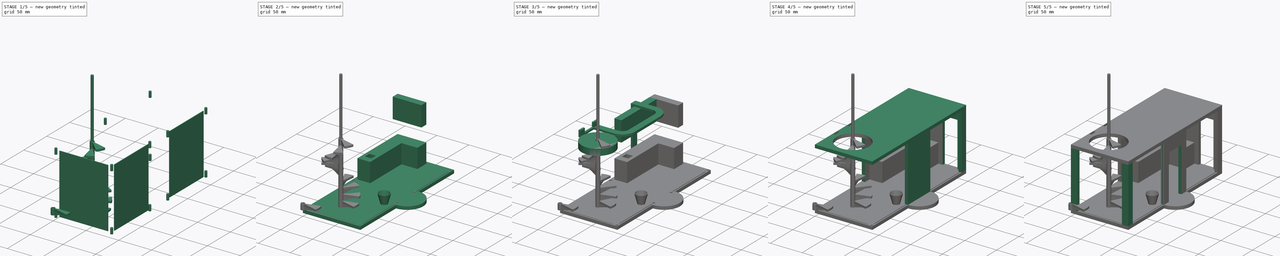
[diagram: build sequence overview — one tinted view per stage of 5, left to right]
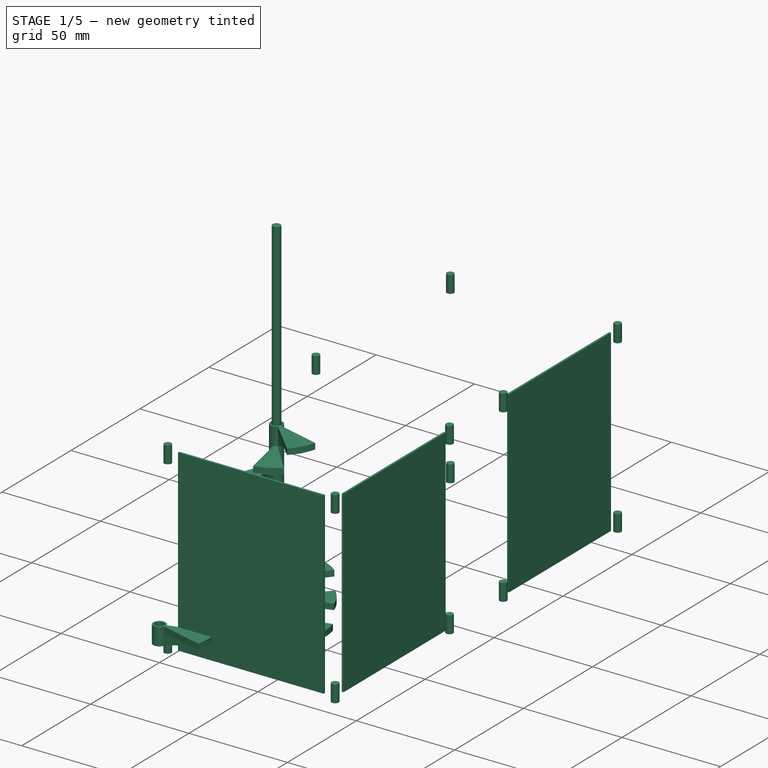
[diagram: stage 1 of 5 — iso view after this stage's code; geometry added in this stage tinted green]
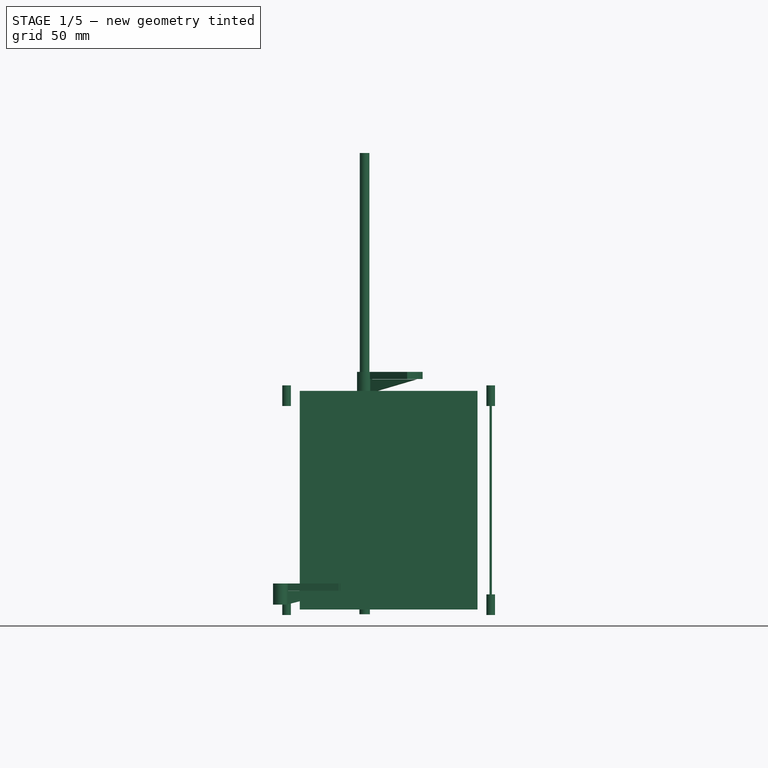
[diagram: stage 1 of 5 — front view after this stage's code; geometry added in this stage tinted green]
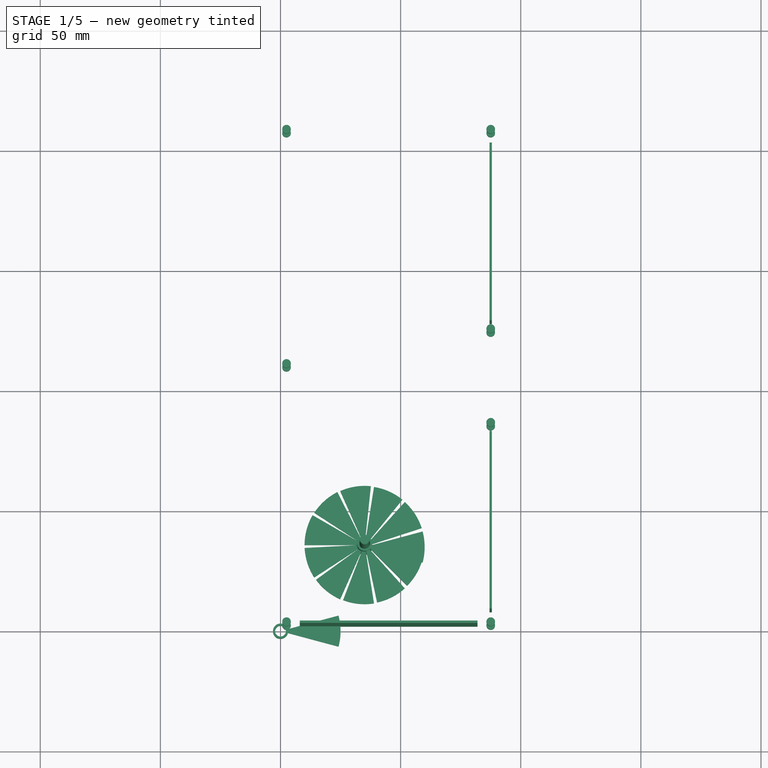
[diagram: stage 1 of 5 — top view after this stage's code; geometry added in this stage tinted green]
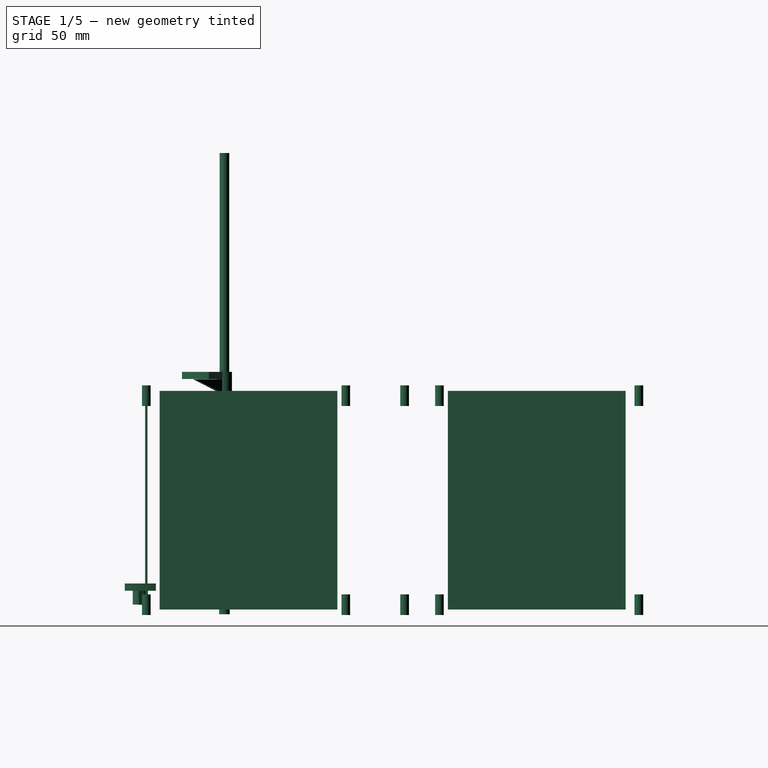
[diagram: stage 1 of 5 — right view after this stage's code; geometry added in this stage tinted green]
FCSTD DOCUMENT  (FreeCAD 0.15R4671 (Git))
Label: Entrada_Casa
License: CreativeCommons Attribution-ShareAlike
LicenseURL: http://creativecommons.org/licenses/by-sa/4.0/
objects: Part::Box×28, Part::Feature×16, Part::Cut×14, Part::MultiFuse×10, Part::Cylinder×8, App::DocumentObjectGroup×2, Part::Offset×1, Part::Fillet×1, Part::Cone×1, Part::Thickness×1, Sketcher::SketchObject×1, PartDesign::Pad×1, Part::FeaturePython×1
note: 84 computed .brp shape members not serialized (recipe doc carries the construction recipe); baked Part::Feature solids carry a one-line shape summary decoded from their .brp

FEATURE [Part::Feature] Offset001  label="Vaciado conector 1"
  Placement = pos=(2.5,2.5,-4) rot=(0,0,1;0rad)
  shape: bbox 3.602 x 3.602 x 8.602 mm, 3 faces (baked)
FEATURE [Part::Feature] Offset002  label="Vaciado conector 2"
  Placement = pos=(87.5,2.5,-4) rot=(0,0,1;0rad)
  shape: bbox 3.602 x 3.602 x 8.602 mm, 3 faces (baked)
FEATURE [Part::Feature] Offset001001  label="Vaciado conector 3"
  Placement = pos=(2.5,2.5,83) rot=(0,0,1;0rad)
  shape: bbox 3.602 x 3.602 x 8.602 mm, 3 faces (baked)
FEATURE [Part::Feature] Offset002001  label="Vaciado conector 4"
  Placement = pos=(87.5,2.5,83) rot=(0,0,1;0rad)
  shape: bbox 3.602 x 3.602 x 8.602 mm, 3 faces (baked)
FEATURE [Part::Feature] Offset002002  label="Vaciado conector 5"
  Placement = pos=(87.5,85.5,-4) rot=(0,0,1;0rad)
  shape: bbox 3.602 x 3.602 x 8.602 mm, 3 faces (baked)
FEATURE [Part::Feature] Offset002002001  label="Vaciado conector 6"
  Placement = pos=(87.5,85.5,83) rot=(0,0,1;0rad)
  shape: bbox 3.602 x 3.602 x 8.602 mm, 3 faces (baked)
FEATURE [Part::Feature] Offset002002002  label="Vaciado conector 7"
  Placement = pos=(87.5,124.5,-4) rot=(0,0,1;0rad)
  shape: bbox 3.602 x 3.602 x 8.602 mm, 3 faces (baked)
FEATURE [Part::Feature] Offset002002002001  label="Vaciado conector 8"
  Placement = pos=(87.5,124.5,83) rot=(0,0,1;0rad)
  shape: bbox 3.602 x 3.602 x 8.602 mm, 3 faces (baked)
FEATURE [Part::Feature] Offset002002002002  label="Vaciado conector 9"
  Placement = pos=(87.5,207.5,-4) rot=(0,0,1;0rad)
  shape: bbox 3.602 x 3.602 x 8.602 mm, 3 faces (baked)
FEATURE [Part::Feature] Offset002002002002001  label="Vaciado conector 10"
  Placement = pos=(87.5,207.5,83) rot=(0,0,1;0rad)
  shape: bbox 3.602 x 3.602 x 8.602 mm, 3 faces (baked)
FEATURE [Part::Feature] Offset001002  label="Vaciado conector 11"
  Placement = pos=(2.5,207.5,83) rot=(0,0,1;0rad)
  shape: bbox 3.602 x 3.602 x 8.602 mm, 3 faces (baked)
FEATURE [Part::Feature] Offset001002001  label="Vaciado conector 12"
  Placement = pos=(2.5,207.5,-4) rot=(0,0,1;0rad)
  shape: bbox 3.602 x 3.602 x 8.602 mm, 3 faces (baked)
FEATURE [Part::Feature] Offset001002002  label="Vaciado conector 13"
  Placement = pos=(2.5,110,-4) rot=(0,0,1;0rad)
  shape: bbox 3.602 x 3.602 x 8.602 mm, 3 faces (baked)
FEATURE [Part::Feature] Offset001002002001  label="Vaciado conector 14"
  Placement = pos=(2.5,110,83) rot=(0,0,1;0rad)
  shape: bbox 3.602 x 3.602 x 8.602 mm, 3 faces (baked)
FEATURE [Part::Box] Box020  label="cristal Lateral Modulo Entrada"
  Height = 91
  Length = 74
  Placement = pos=(8,2,-2) rot=(0,0,1;0rad)
  Width = 1
FEATURE [Part::Box] Box021002  label="cristal Cocina"
  Height = 91
  Length = 1
  Placement = pos=(87,128,-2) rot=(0,0,1;0rad)
  Width = 74
FEATURE [Part::Box] Box021003006  label="Cristal Frontal Izquierdo Modulo Entrada"
  Height = 91
  Length = 1
  Placement = pos=(87,8,-2) rot=(0,0,1;0rad)
  Width = 74
FEATURE [Part::MultiFuse] Fusion004  label="Union de Conectores y Cristales"
  Shapes = -> [Offset001,Offset002,Offset001001,Offset002001,Offset002002,Offset002002001,Offset002002002,Offset002002002001,Offset002002002002,Offset002002002002001,Offset001002,Offset001002001,Offset001002002,Offset001002002001,Box020,Box021002,Box021003006]
FEATURE [Part::Cylinder] Cylinder003003  label="Encastre Barra Central escalera caracol"
  Angle = 360
  Height = 10
  Placement = pos=(35,35,-4) rot=(0,0,1;0rad)
  Radius = 2.2
FEATURE [App::DocumentObjectGroup] Grupo001  label="Elementos constructivos Modulo Entrada"
  Group = -> [Offset,Cut003,Cut004,Cut005,Cut009,Cut010,Cut012]
FEATURE [Part::Cylinder] Cylinder003004  label="Peldaño macizo"
  Angle = 30
  Height = 3
  Placement = pos=(0,0,5.8181) rot=(0,0,-1;0.261799rad)
  Radius = 25
FEATURE [Part::Cylinder] Cylinder003005  label="Exterior  cilindro central"
  Angle = 360
  Height = 8.8181
  Radius = 3.15
FEATURE [Sketcher::SketchObject] Sketch  label="perfil soporte angular"
  Placement = pos=(2.12,0.675,0) rot=(1,0,0;1.5708rad)
  sketch-geometry (3):
    g0: LineSegment StartX=0 StartY=-0.0840877 StartZ=0 EndX=22.85 EndY=5.73401 EndZ=0
    g1: LineSegment StartX=22.85 StartY=5.73401 StartZ=0 EndX=0 EndY=5.73401 EndZ=0
    g2: LineSegment StartX=0 StartY=5.73401 StartZ=0 EndX=0 EndY=-0.0840877 EndZ=0
  constraints (7):
    c: Coincident(g0,g1)
    c: Coincident(g1,g2)
    c: Coincident(g2,g0)
    c: Vertical(g2)
    c: Horizontal(g1)
    c: Distance(g2) = 5.8181
    c: DistanceX(g1) = -22.85
FEATURE [PartDesign::Pad] Pad  label="Refuerzo angular peldaño"
  Length = 1.35
  Length2 = 100
  Placement = pos=(2.12,0.675,0) rot=(1,0,0;1.5708rad)
  Sketch = -> Sketch
  Type = 0
FEATURE [Part::MultiFuse] Fusion009  label="Peldaño master sin paso eje central"
  Shapes = -> [Cylinder003004,Cylinder003005,Pad]
FEATURE [Part::Cylinder] Cylinder003006  label="Hueco central paso barra escalera"
  Angle = 360
  Height = 11
  Placement = pos=(0,0,-1) rot=(0,0,1;0rad)
  Radius = 2.25
FEATURE [Part::Cut] Cut013  label="Master Peldaño Escalera de Caracol"
  Base = -> Fusion009
  Tool = -> Cylinder003006
FEATURE [Part::Cylinder] Cylinder003007  label="Barra Central Escalera Caracol"
  Angle = 360
  Height = 192
  Placement = pos=(35,35,-4) rot=(0,0,1;0rad)
  Radius = 2
FEATURE [Part::Feature] Cut013001  label="Peldaño Escalera de Caracol"
  shape: bbox 28.15 x 12.94 x 8.895 mm, 15 faces (baked)
FEATURE [Part::FeaturePython] Array  label="Peldaños Escalera"  # Draft array (typed FeaturePython)
  Angle = 330
  ArrayType = 1
  Axis = (0,0,1)
  Base = -> Cut013001
  Center = (0,0,0)
  Fuse = false
  IntervalAxis = (0,0,8.81)
  IntervalX = (1,0,0)
  IntervalY = (0,1,0)
  IntervalZ = (0,0,0)
  NumberPolar = 11
  NumberX = 2
  NumberY = 2
  NumberZ = 1
  Placement = pos=(35,35,0) rot=(0,0,1;0rad)
FEATURE [App::DocumentObjectGroup] Grupo  label="Mobiliario Modulo Entrada"
  Group = -> [Fusion008,Cut011,Thickness,Cylinder003007,Array,Cut013]
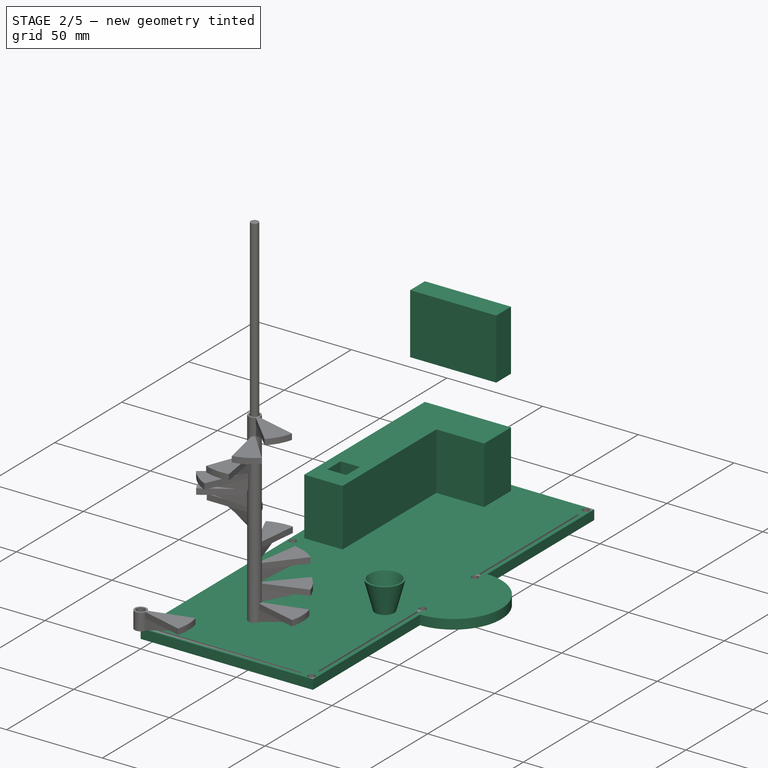
[diagram: stage 2 of 5 — iso view after this stage's code; geometry added in this stage tinted green]
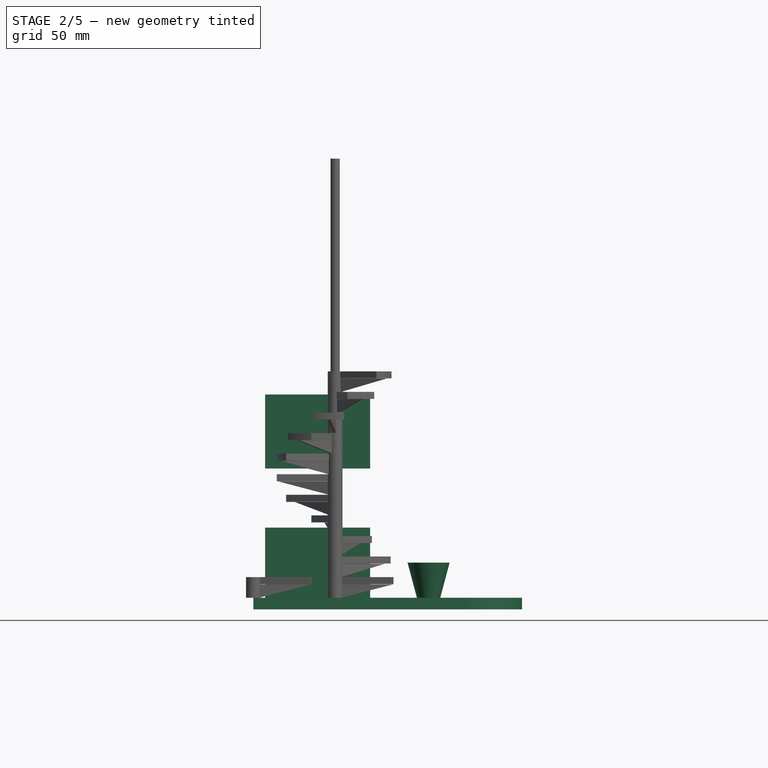
[diagram: stage 2 of 5 — front view after this stage's code; geometry added in this stage tinted green]
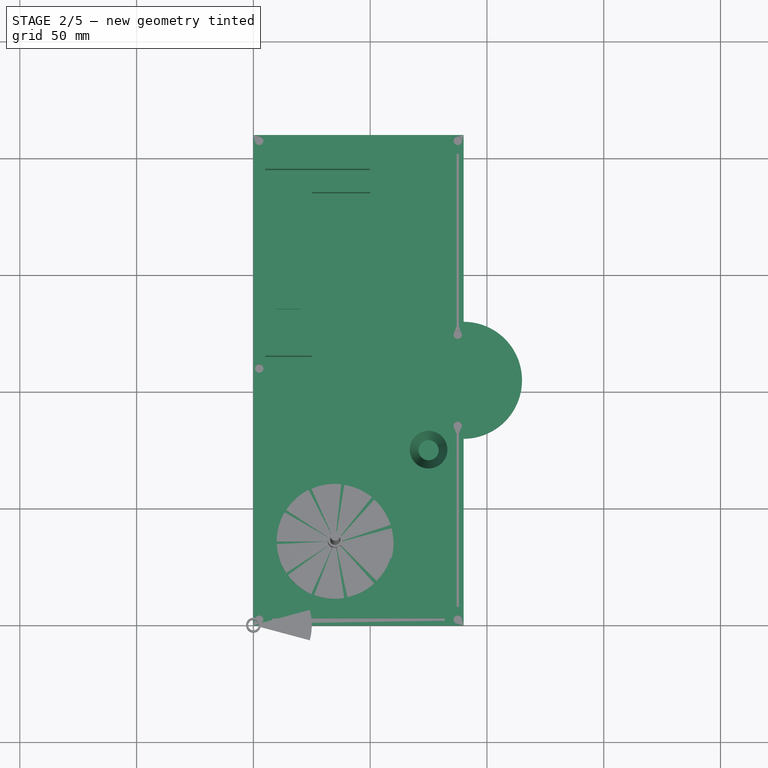
[diagram: stage 2 of 5 — top view after this stage's code; geometry added in this stage tinted green]
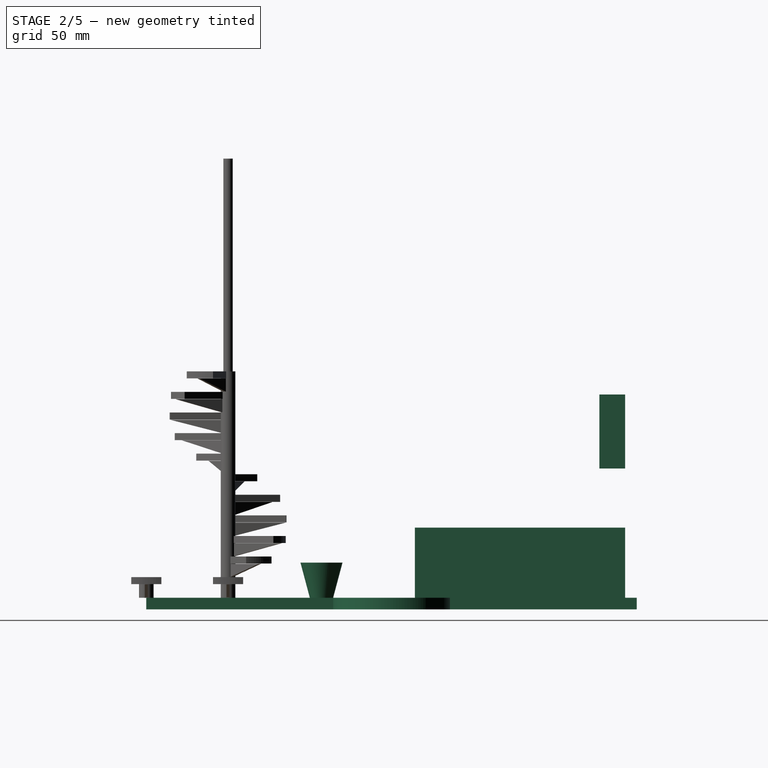
[diagram: stage 2 of 5 — right view after this stage's code; geometry added in this stage tinted green]
FEATURE [Part::Box] Box  label="suelo macizo conteiner 20""
  Height = 5
  Length = 90
  Placement = pos=(0,0,-5) rot=(0,0,1;0rad)
  Width = 210
FEATURE [Part::Cylinder] Cylinder003002  label="Pie Puerta de Entrada Casa"
  Angle = 180
  Height = 5
  Placement = pos=(90,105,-5) rot=(0,0,-1;1.5708rad)
  Radius = 25
FEATURE [Part::MultiFuse] Fusion003  label="Suelo Modulo Entrada con Pie de Puerta"
  Shapes = -> [Box,Cylinder003002]
FEATURE [Part::Cut] Cut007  label="Suelo Modulo de Entrada sin soporte escalera"
  Base = -> Fusion003
  Tool = -> Fusion004
FEATURE [Part::Box] Box021003010005  label="Mueble bajo largo Cocina"
  Height = 30
  Length = 20
  Placement = pos=(5,115,0) rot=(0,0,1;0rad)
  Width = 90
FEATURE [Part::Box] Box021003010006  label="Mueble bajo corto Cocina"
  Height = 30
  Length = 45
  Placement = pos=(5,185,0) rot=(0,0,1;0rad)
  Width = 20
FEATURE [Part::Box] Box021003010008  label="Mueble alto corto Cocina"
  Height = 31.6667
  Length = 45
  Placement = pos=(5,194,55.3333) rot=(0,0,1;0rad)
  Width = 11
FEATURE [Part::MultiFuse] Fusion007  label="Mueble bajo cocina sin fregadero"
  Shapes = -> [Box021003010005,Box021003010006]
FEATURE [Part::Box] Box021003010009  label="Hueco fregadero"
  Height = 12
  Length = 10
  Placement = pos=(10,125,20) rot=(0,0,1;0rad)
  Width = 10
FEATURE [Part::Cut] Cut011  label="Mueble bajo Cocina"
  Base = -> Fusion007
  Tool = -> Box021003010009
FEATURE [Part::Cone] Cone  label="Cono macetero"
  Angle = 360
  Height = 15
  Placement = pos=(75,15,0) rot=(0,0,1;0rad)
  Radius1 = 5
  Radius2 = 9
FEATURE [Part::Thickness] Thickness  label="Macetero"
  Faces = -> Cone [Face2]
  Intersection = false
  Join = 2
  Mode = 0
  Placement = pos=(0,60,0) rot=(0,0,1;0rad)
  SelfIntersection = false
  Value = -0.9
FEATURE [Part::Cut] Cut012  label="Suelo Modulo de Entrada"
  Base = -> Cut007
  Tool = -> Cylinder003003
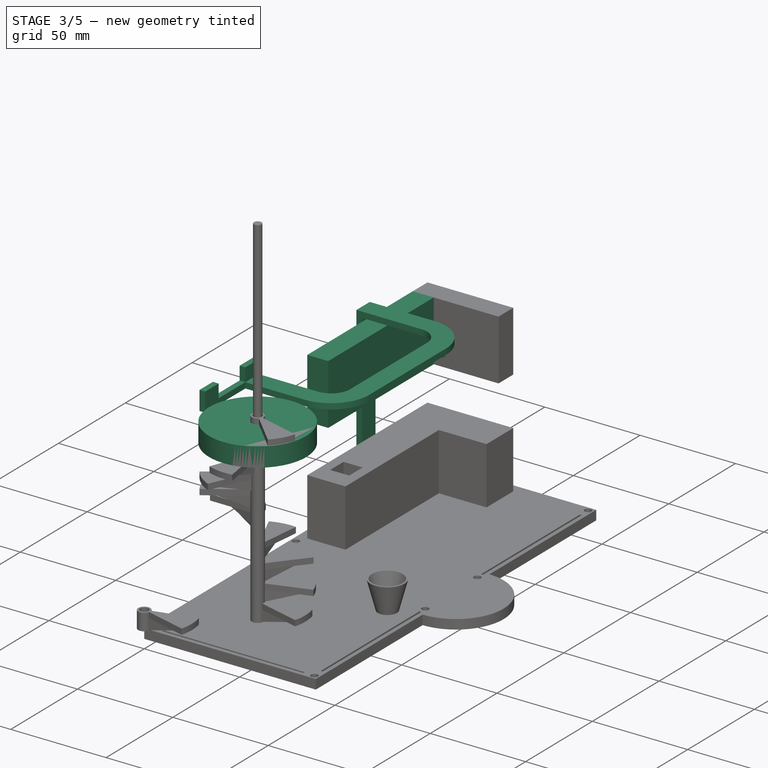
[diagram: stage 3 of 5 — iso view after this stage's code; geometry added in this stage tinted green]
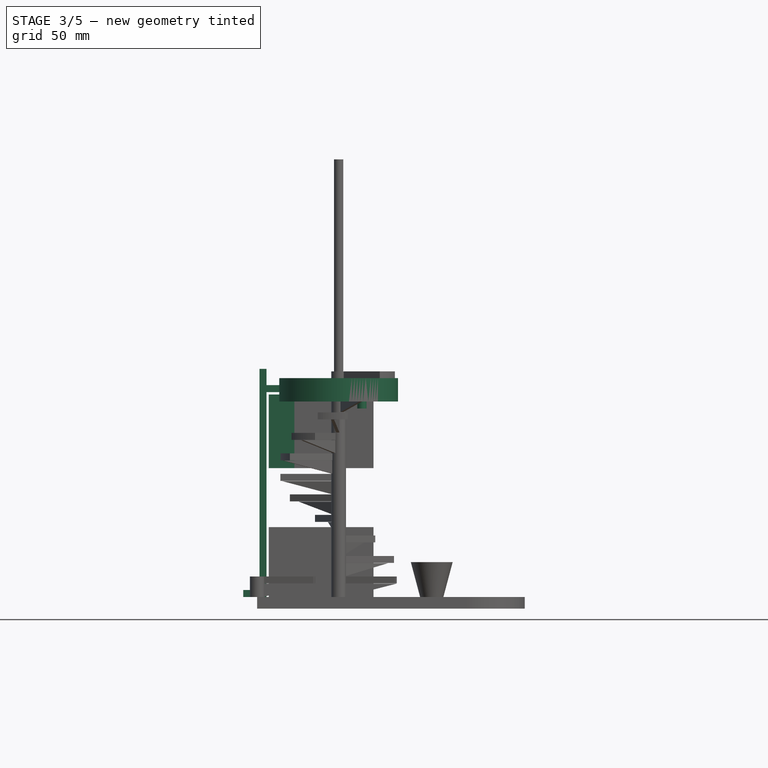
[diagram: stage 3 of 5 — front view after this stage's code; geometry added in this stage tinted green]
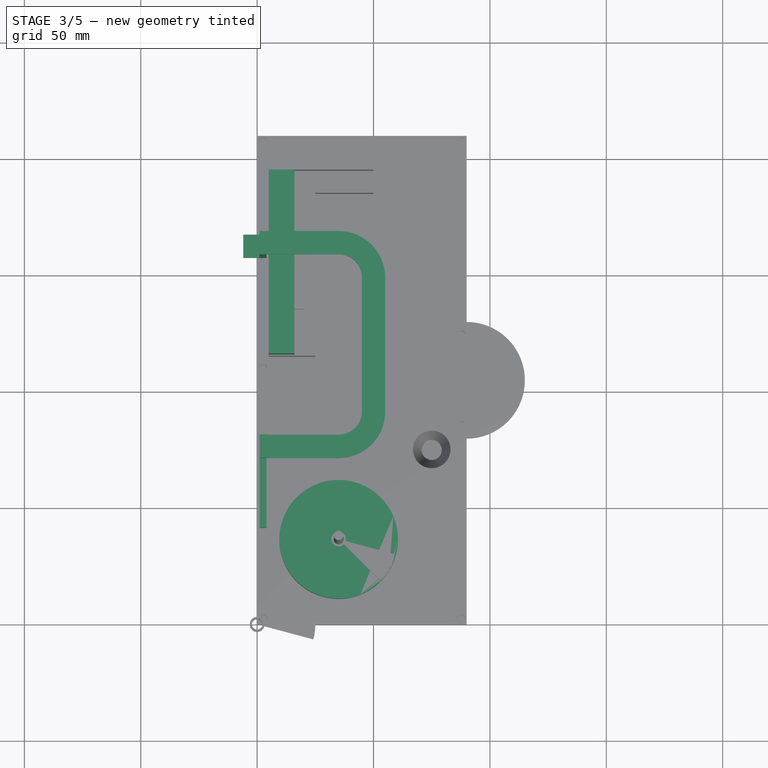
[diagram: stage 3 of 5 — top view after this stage's code; geometry added in this stage tinted green]
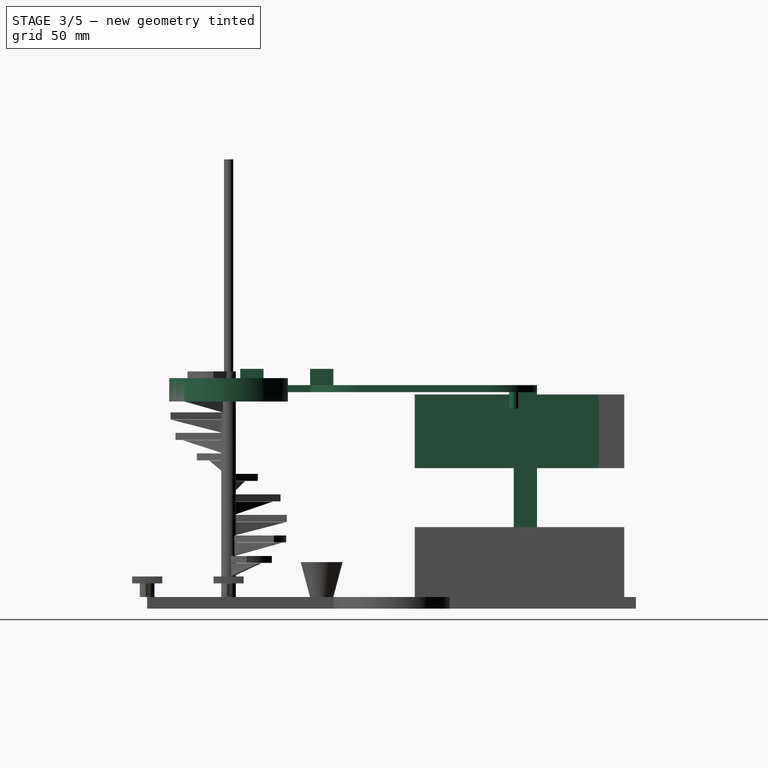
[diagram: stage 3 of 5 — right view after this stage's code; geometry added in this stage tinted green]
FEATURE [Part::Cylinder] Cylinder  label="hueco escalera caracol"
  Angle = 360
  Height = 10
  Placement = pos=(35,35,84) rot=(0,0,1;0rad)
  Radius = 25.5
FEATURE [Part::Box] Box021003007  label="Roza bajante Dormitorio Cables Techo"
  Height = 10
  Length = 3
  Placement = pos=(1,40,88) rot=(0,0,1;0rad)
  Width = 10
FEATURE [Part::Box] Box021003008  label="Roza bajante Dormitorio Cables Porche"
  Height = 10
  Length = 3
  Placement = pos=(1,70,88) rot=(0,0,1;0rad)
  Width = 10
FEATURE [Part::Box] Box021003009  label="Roza Union Bajantes Dormitorio"
  Height = 3
  Length = 3
  Placement = pos=(1,45,88) rot=(0,0,1;0rad)
  Width = 30
FEATURE [Part::Box] Box021003010  label="Roza Techo eje X Led Cocina"
  Height = 3
  Length = 54
  Placement = pos=(1,70,88) rot=(0,0,1;0rad)
  Width = 10
FEATURE [Part::Box] Box021003011  label="Roza Techo eje Y Led Cocina"
  Height = 3
  Length = 10
  Placement = pos=(45,70,88) rot=(0,0,1;0rad)
  Width = 97.5
FEATURE [Part::Box] Box021003010002  label="Roza vertical muro de esquina"
  Height = 91
  Length = 3
  Placement = pos=(1,157.5,0) rot=(0,0,1;0rad)
  Width = 10
FEATURE [Part::Box] Box021003010003  label="Salida Roza vertical hacia alojamiento placa y bateria"
  Height = 3
  Length = 10
  Placement = pos=(-6,157.5,0) rot=(0,0,1;0rad)
  Width = 10
FEATURE [Part::Box] Box021003010004  label="Roza Techo eje X union Muro Vertical"
  Height = 3
  Length = 54
  Placement = pos=(1,157.5,88) rot=(0,0,1;0rad)
  Width = 10
FEATURE [Part::MultiFuse] Fusion005  label="Roza del techo sin redondeos ni hueco led"
  Shapes = -> [Box021003007,Box021003008,Box021003009,Box021003010,Box021003011,Box021003010002,Box021003010003,Box021003010004]
FEATURE [Part::Fillet] Fillet  label="Roza techo con redondeos"
  Base = -> Fusion005
  Edges = 4 edges: [Edge2 r=10,Edge4 r=10,Edge27 r=20,Edge82 r=20]
FEATURE [Part::MultiFuse] Fusion006  label="Roza Techo Modulo Entrada"
  Shapes = -> [Fillet,Cylinder003001]
FEATURE [Part::Box] Box021003010007  label="Mueble alto largo Cocina"
  Height = 31.6667
  Length = 11
  Placement = pos=(5,115,55.3333) rot=(0,0,1;0rad)
  Width = 90
FEATURE [Part::MultiFuse] Fusion008  label="Mueble alto Cocina"
  Shapes = -> [Box021003010007,Box021003010008]
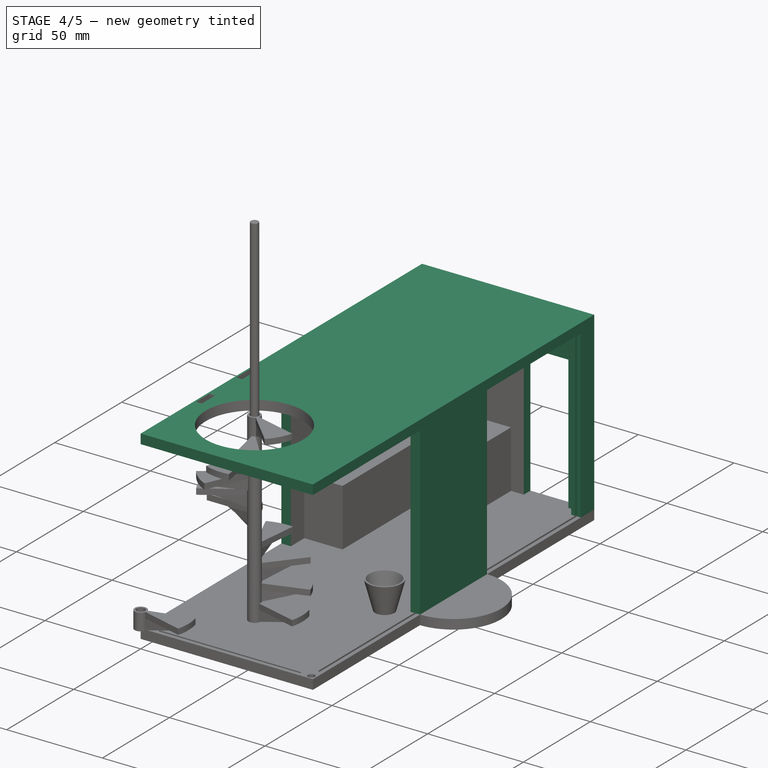
[diagram: stage 4 of 5 — iso view after this stage's code; geometry added in this stage tinted green]
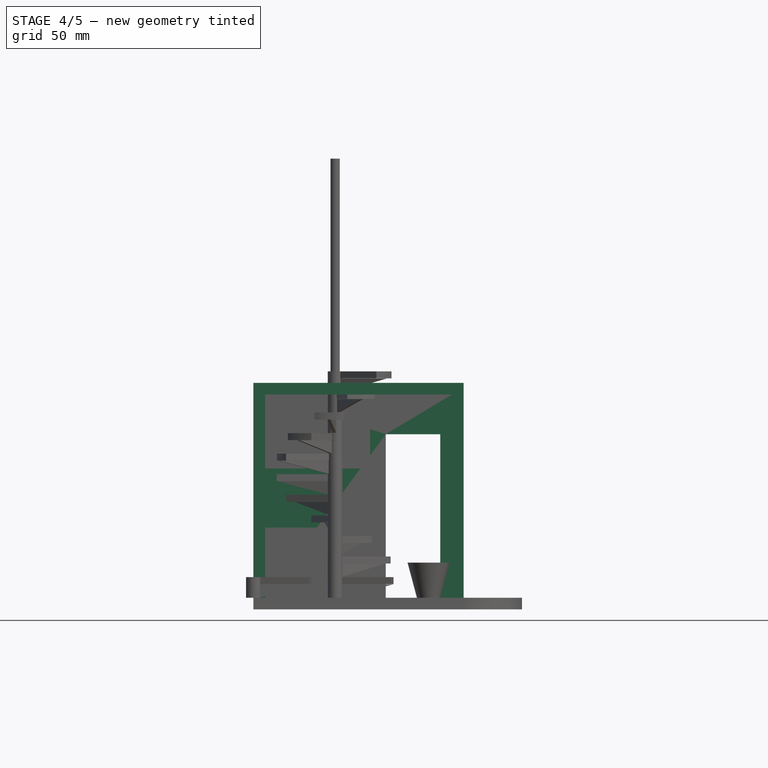
[diagram: stage 4 of 5 — front view after this stage's code; geometry added in this stage tinted green]
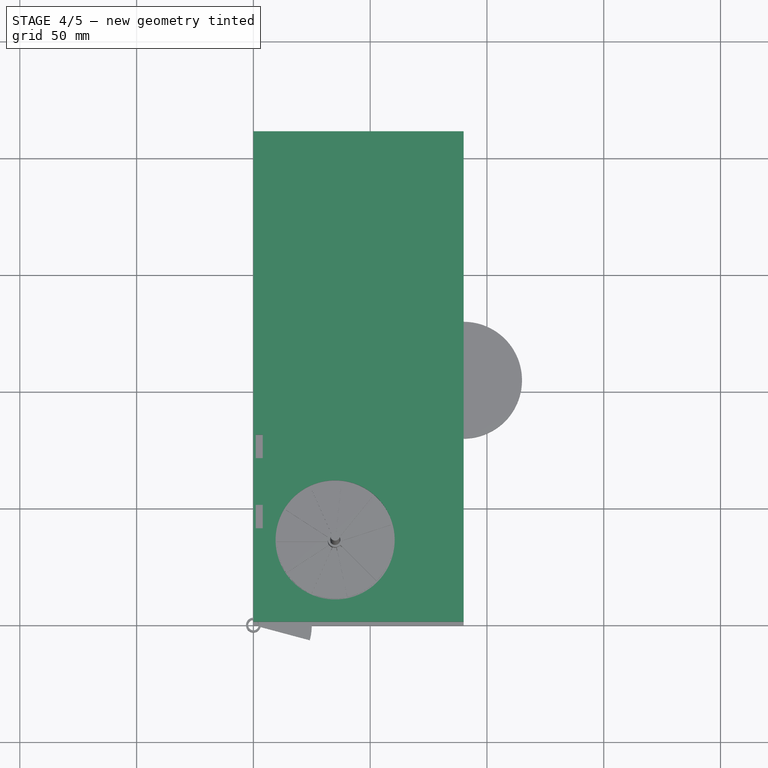
[diagram: stage 4 of 5 — top view after this stage's code; geometry added in this stage tinted green]
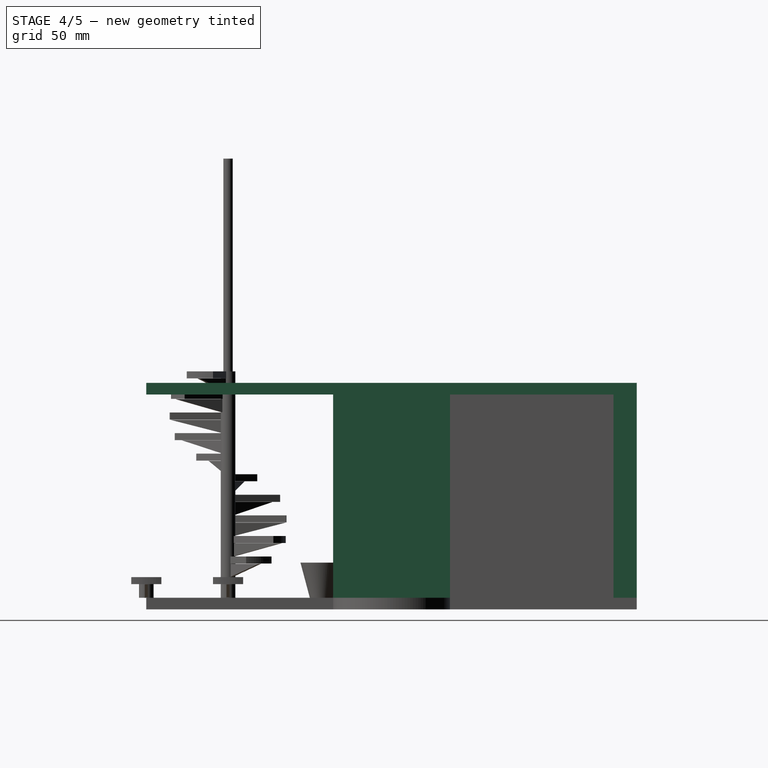
[diagram: stage 4 of 5 — right view after this stage's code; geometry added in this stage tinted green]
FEATURE [Part::Box] Box001  label="Techo macizo conteiner 20""
  Height = 5
  Length = 90
  Placement = pos=(0,0,87) rot=(0,0,1;0rad)
  Width = 210
FEATURE [Part::Box] Box007  label="Tabique macizo de esquina lateral Modulo Entrada"
  Height = 87
  Length = 5
  Placement = pos=(85,200,0) rot=(0,0,1;0rad)
  Width = 10
FEATURE [Part::Box] Box008  label="Tabique Modulo Entrada lindante con Garaje"
  Height = 87
  Length = 80
  Placement = pos=(5,205,0) rot=(0,0,1;0rad)
  Width = 5
FEATURE [Part::Box] Box009  label="Tabique largo Modulo Entrada Zona Cocina"
  Height = 87
  Length = 5
  Placement = pos=(0,105,0) rot=(0,0,1;0rad)
  Width = 105
FEATURE [Part::MultiFuse] Fusion002  label="Pared esquinazo Modulo Entrada"
  Shapes = -> [Box007,Box008,Box009]
FEATURE [Part::Box] Box010  label="Hueco puerta paso solarium"
  Height = 70
  Length = 23.3333
  Placement = pos=(56.6667,203,0) rot=(0,0,1;0rad)
  Width = 10
FEATURE [Part::Feature] Cylinder003001  label="Hueco Techo Led escritorio"
  Placement = pos=(45,157.5,81) rot=(0,0,1;0rad)
  shape: bbox 4 x 4 x 10 mm, 3 faces (baked)
FEATURE [Part::Cut] Cut  label="Pared esquinazo Modulo Entrada con puerta paso a Garaje"
  Base = -> Fusion002
  Tool = -> Box010
FEATURE [Part::Box] Box021003005  label="Tabique central de entrada a la casa"
  Height = 87
  Length = 5
  Placement = pos=(85,80,0) rot=(0,0,1;0rad)
  Width = 50
FEATURE [Part::Cut] Cut002  label="Techo Modulo Entrada con hueco escalera caracol"
  Base = -> Box001
  Tool = -> Cylinder
FEATURE [Part::Cut] Cut006  label="Pared Esquina con puerta paso a Garaje"
  Base = -> Cut
  Tool = -> Fusion004
FEATURE [Part::Cut] Cut008  label="Techo Modulo Central con roza cables"
  Base = -> Cut002
  Tool = -> Fusion006
FEATURE [Part::Cut] Cut009  label="Pared Modulo Entrada medianera con Garaje"
  Base = -> Cut006
  Tool = -> Fusion006
FEATURE [Part::Cut] Cut010  label="Techo Modulo Entrada"
  Base = -> Cut008
  Tool = -> Fusion004
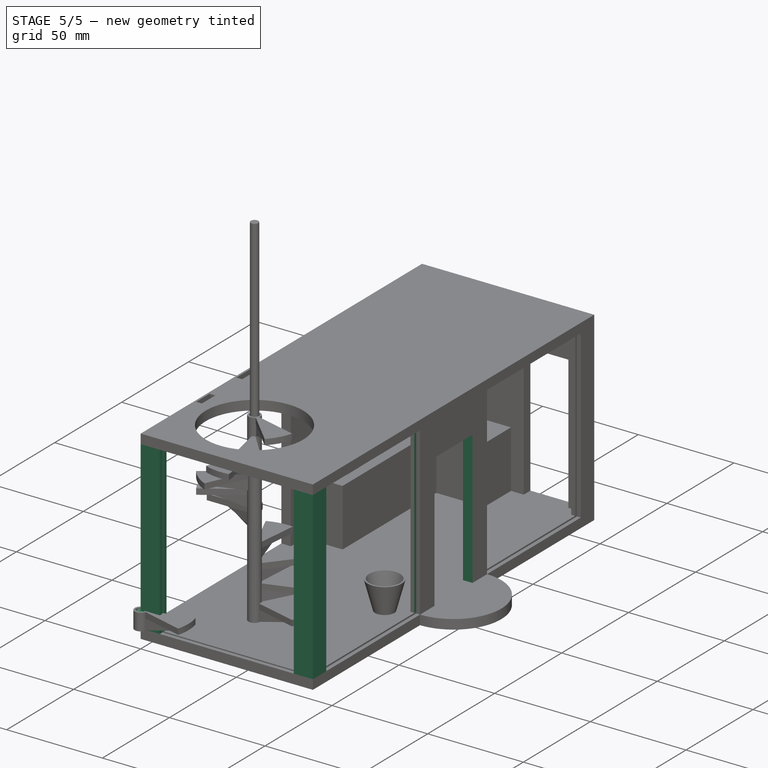
[diagram: stage 5 of 5 — iso view after this stage's code; geometry added in this stage tinted green]
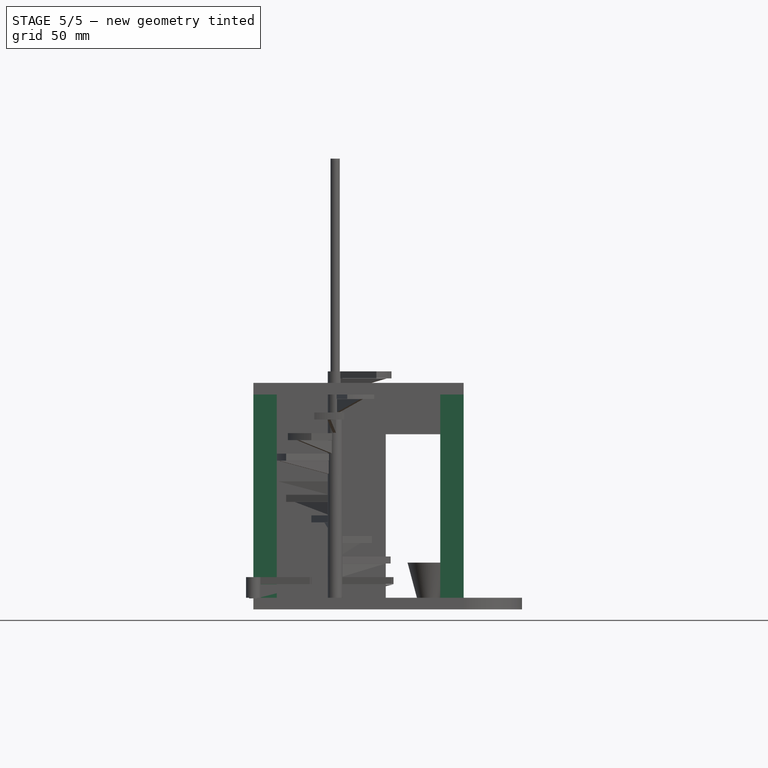
[diagram: stage 5 of 5 — front view after this stage's code; geometry added in this stage tinted green]
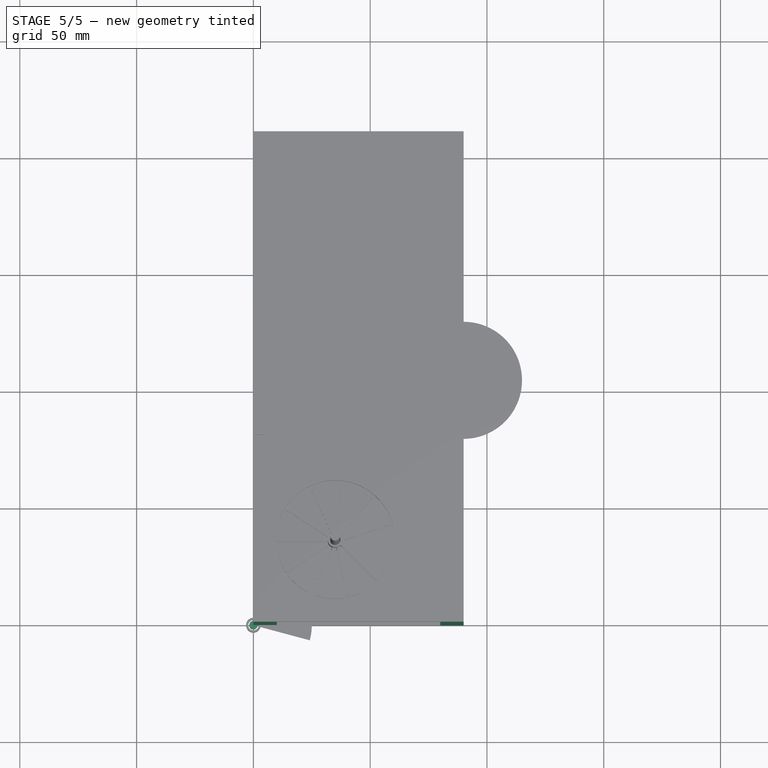
[diagram: stage 5 of 5 — top view after this stage's code; geometry added in this stage tinted green]
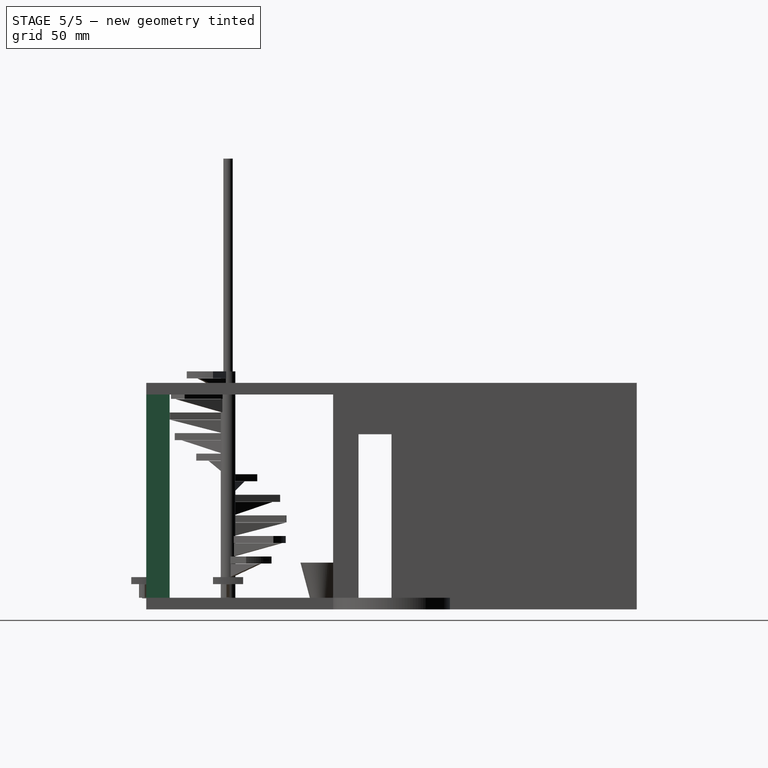
[diagram: stage 5 of 5 — right view after this stage's code; geometry added in this stage tinted green]
FEATURE [Part::Box] Box002  label="larguero vertical esquina 1_1"
  Height = 87
  Length = 10
  Width = 5
FEATURE [Part::Box] Box003  label="larguero vertical esquina 1_2"
  Height = 87
  Length = 5
  Width = 10
FEATURE [Part::MultiFuse] Fusion  label="Larguero esquina 1 Modulo Entrada"
  Shapes = -> [Box002,Box003]
FEATURE [Part::Box] Box004  label="larguero vertical esquina 2_1"
  Height = 87
  Length = 10
  Placement = pos=(80,0,0) rot=(0,0,1;0rad)
  Width = 5
FEATURE [Part::Box] Box005  label="larguero vertical esquina 2_2"
  Height = 87
  Length = 5
  Placement = pos=(85,0,0) rot=(0,0,1;0rad)
  Width = 10
FEATURE [Part::MultiFuse] Fusion001  label="Larguero esquina 2 Modulo Entrada"
  Shapes = -> [Box004,Box005]
FEATURE [Part::Cylinder] Cylinder002  label="conector master"
  Angle = 360
  Height = 8
  Radius = 1.5
FEATURE [Part::Offset] Offset  label="Offset conector master"
  Fill = false
  Intersection = false
  Join = 2
  Mode = 1
  SelfIntersection = false
  Source = -> Cylinder002
  Value = 0.3
FEATURE [Part::Box] Box021003004  label="Puerta Principal de entrada a la casa"
  Height = 70
  Length = 10
  Placement = pos=(85,90.8333,0) rot=(0,0,1;0rad)
  Width = 28.3333
FEATURE [Part::Cut] Cut001  label="Tabique Entrada  con hueco puerta entrada"
  Base = -> Box021003005
  Tool = -> Box021003004
FEATURE [Part::Cut] Cut003  label="Larguero 1 Esquina Modulo Entrada"
  Base = -> Fusion
  Tool = -> Fusion004
FEATURE [Part::Cut] Cut004  label="Larguero 2 Esquina Modulo Entrada"
  Base = -> Fusion001
  Tool = -> Fusion004
FEATURE [Part::Cut] Cut005  label="Pared con la Puerta de Entrada a la casa"
  Base = -> Cut001
  Tool = -> Fusion004
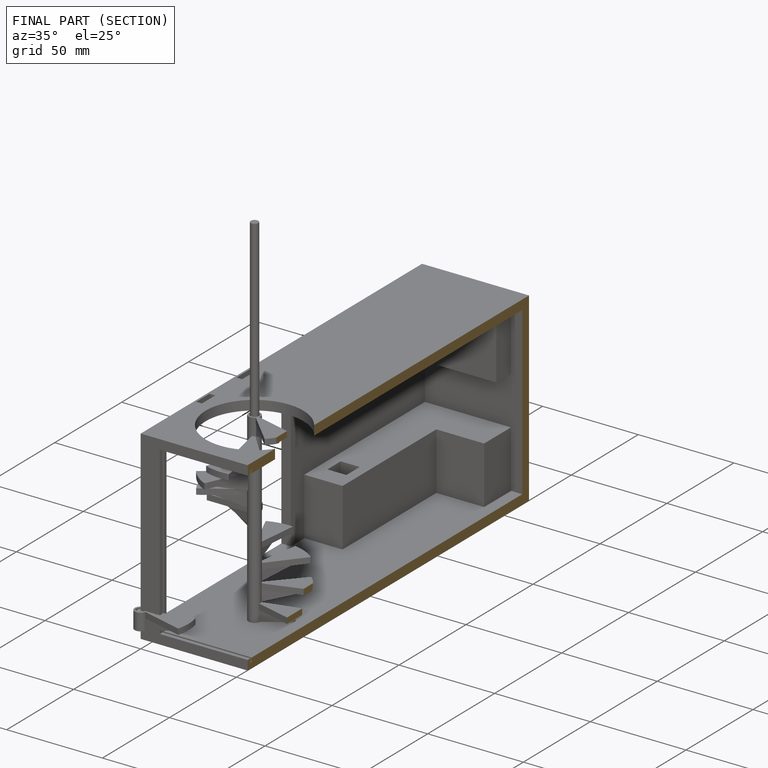
[diagram: finished part — half-section view (interior)]
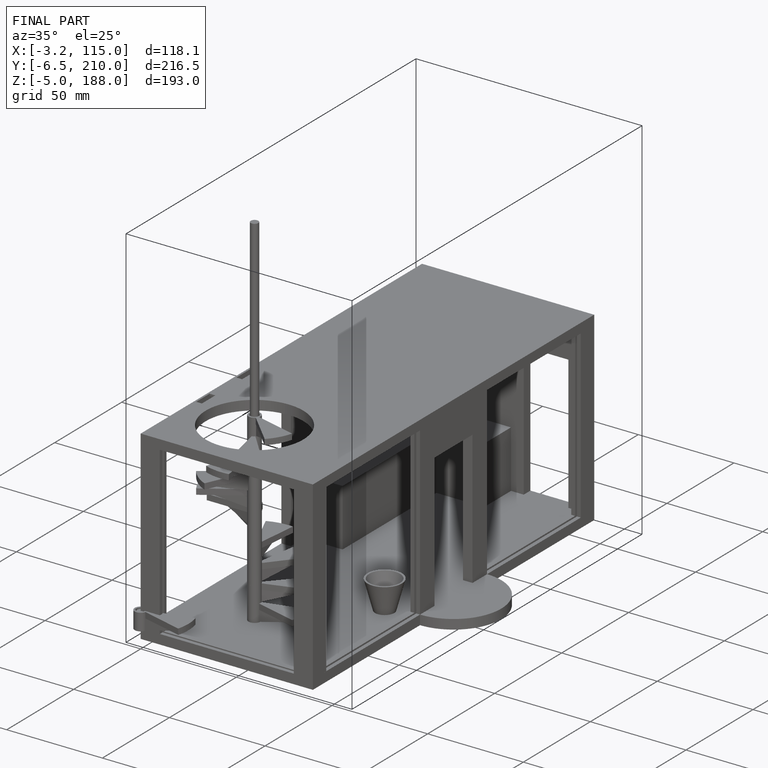
[diagram: finished part — iso view with bounding-box wireframe]
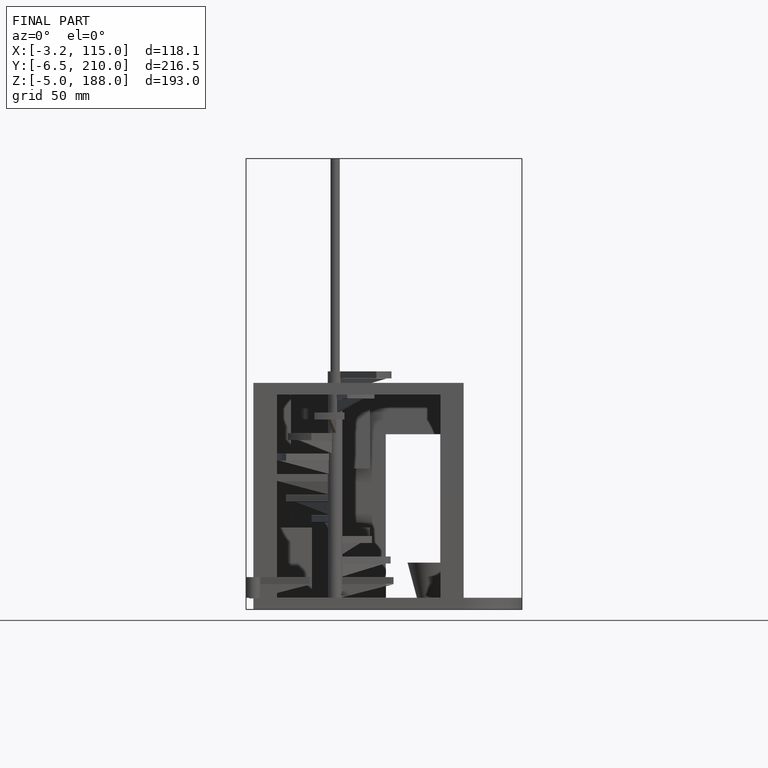
[diagram: finished part — front view with bounding-box wireframe]
